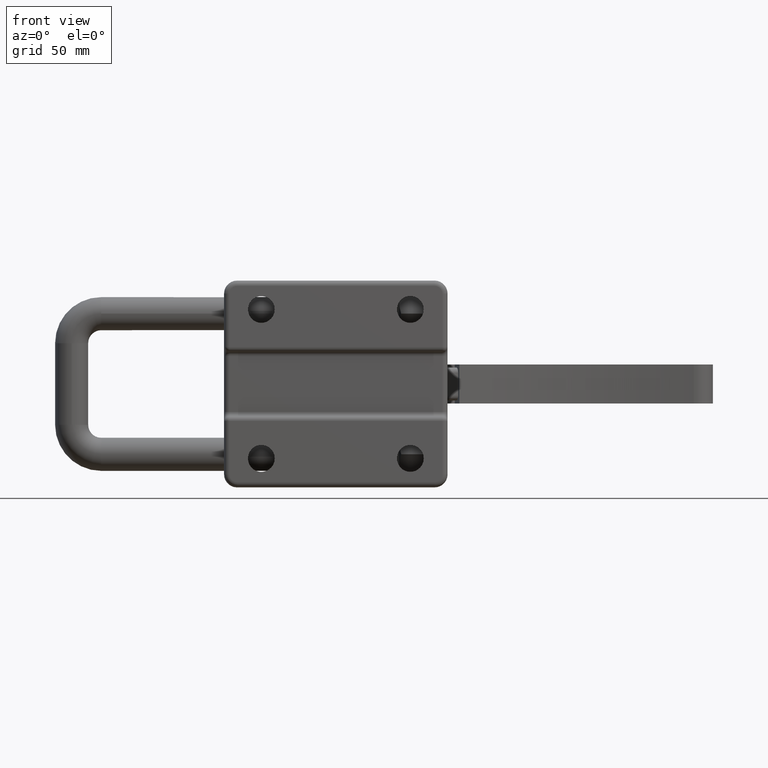
[diagram: clean part render]
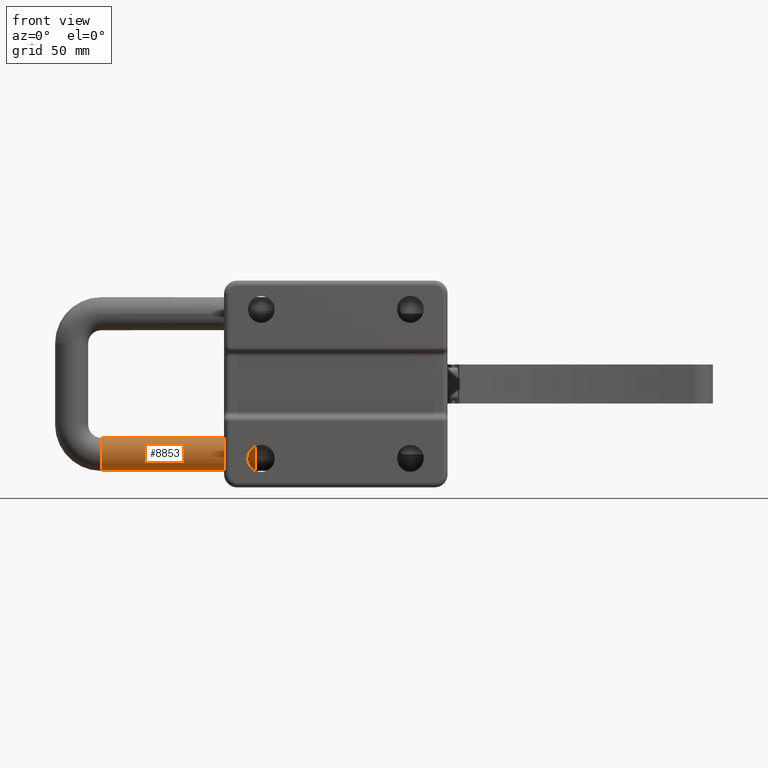
[diagram: same view with one face highlighted and labeled with its STEP entity id]
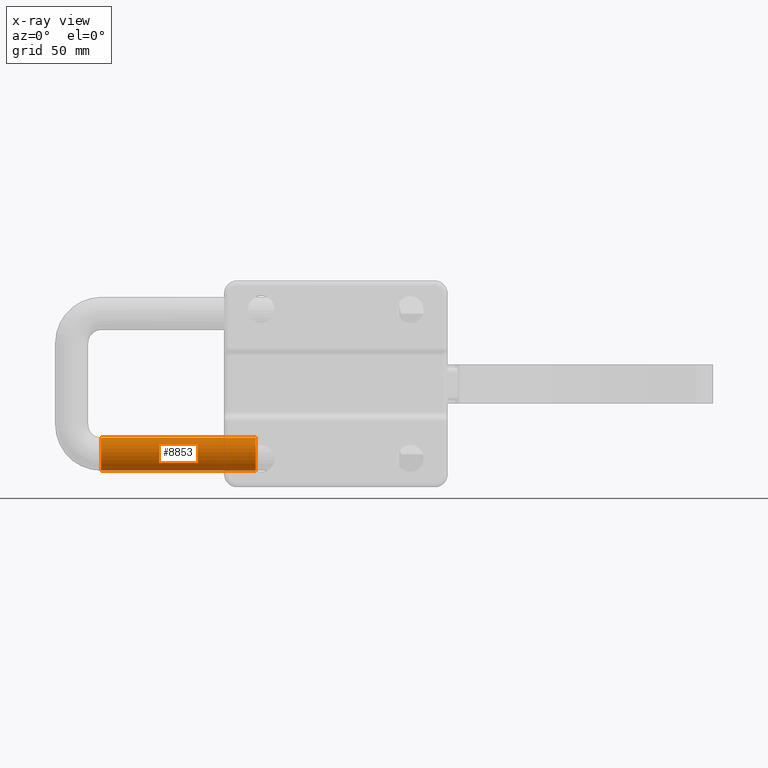
[diagram: x-ray of the same camera — body ghosted, the highlighted face saturated]
A machine part, front view. The second image highlights one B-rep face of the part: STEP entity #8853.
The next image is the same camera in x-ray: the body ghosted, the highlighted face saturated — about 0% of this face is hidden behind the body in this view.
In plain terms, the highlighted cylindrical surface (edge-blend (fillet) strip) has radius 6.35 mm, axis along (1, -0.0023, 0).
Its self-contained STEP definition (entity closure, byte-faithful):
#82 = DIRECTION ( 'NONE',  ( 0.9999974614537677800, -0.002253239006544745800, 6.827962659925420800E-016 ) ) ;
#327 = DIRECTION ( 'NONE',  ( -0.9999974614537677800, 0.002253239006544745800, -2.812591432557387700E-016 ) ) ;
#511 = AXIS2_PLACEMENT_3D ( 'NONE', #9994, #5978, #4023 ) ;
#754 = VECTOR ( 'NONE', #2638, 1000.000000000000200 ) ;
#1694 = ORIENTED_EDGE ( 'NONE', *, *, #3272, .F. ) ;
#2559 = CARTESIAN_POINT ( 'NONE',  ( -30.76788671759244000, 27.52169864269107800, -33.34999999999997300 ) ) ;
#2613 = CIRCLE ( 'NONE', #6586, 6.349999999999998800 ) ;
#2638 = DIRECTION ( 'NONE',  ( 0.9999974614537675600, -0.002253239006544745400, 4.573888958998415300E-016 ) ) ;
#2665 = EDGE_CURVE ( 'NONE', #8363, #6148, #8702, .T. ) ;
#2956 = EDGE_CURVE ( 'NONE', #8363, #11074, #2613, .T. ) ;
#3223 = CARTESIAN_POINT ( 'NONE',  ( -90.06773618180093900, 27.65531571577918200, -20.64999999999999500 ) ) ;
#3272 = EDGE_CURVE ( 'NONE', #11074, #12253, #10732, .T. ) ;
#3402 = EDGE_LOOP ( 'NONE', ( #11741, #12087, #9592, #1694 ) ) ;
#4023 = DIRECTION ( 'NONE',  ( 0.0000000000000000000, 0.0000000000000000000, 1.000000000000000000 ) ) ;
#5317 = CYLINDRICAL_SURFACE ( 'NONE', #511, 6.350000000000001400 ) ;
#5400 = VECTOR ( 'NONE', #11939, 1000.000000000000200 ) ;
#5978 = DIRECTION ( 'NONE',  ( 0.9999974614537675600, -0.002253239006544745400, 4.573888958998415300E-016 ) ) ;
#6051 = CARTESIAN_POINT ( 'NONE',  ( -30.76788671759245400, 27.52169864269107800, -26.99999999999996800 ) ) ;
#6148 = VERTEX_POINT ( 'NONE', #2559 ) ;
#6306 = CARTESIAN_POINT ( 'NONE',  ( -90.06773618180093900, 27.65531571577918200, -26.99999999999999600 ) ) ;
#6472 = CARTESIAN_POINT ( 'NONE',  ( -30.76788671759245400, 27.52169864269107800, -20.64999999999996700 ) ) ;
#6586 = AXIS2_PLACEMENT_3D ( 'NONE', #6306, #327, #7285 ) ;
#7043 = DIRECTION ( 'NONE',  ( -5.463695987328525500E-016, 0.0000000000000000000, 1.000000000000000000 ) ) ;
#7285 = DIRECTION ( 'NONE',  ( 0.002253239006545706000, 0.9999974614537675600, 0.0000000000000000000 ) ) ;
#7999 = CARTESIAN_POINT ( 'NONE',  ( -90.06773618180093900, 27.65531571577918200, -33.34999999999999400 ) ) ;
#8044 = EDGE_CURVE ( 'NONE', #12253, #6148, #11473, .T. ) ;
#8363 = VERTEX_POINT ( 'NONE', #7999 ) ;
#8613 = CARTESIAN_POINT ( 'NONE',  ( -90.06773618180093900, 27.65531571577918200, -33.34999999999999400 ) ) ;
#8617 = FACE_OUTER_BOUND ( 'NONE', #3402, .T. ) ;
#8702 = LINE ( 'NONE', #8613, #754 ) ;
#8853 = ADVANCED_FACE ( 'NONE', ( #8617 ), #5317, .T. ) ;
#9592 = ORIENTED_EDGE ( 'NONE', *, *, #8044, .F. ) ;
#9925 = CARTESIAN_POINT ( 'NONE',  ( -90.06773618180093900, 27.65531571577918200, -20.64999999999999500 ) ) ;
#9994 = CARTESIAN_POINT ( 'NONE',  ( -90.06773618180093900, 27.65531571577918200, -26.99999999999999600 ) ) ;
#10732 = LINE ( 'NONE', #9925, #5400 ) ;
#11074 = VERTEX_POINT ( 'NONE', #3223 ) ;
#11473 = CIRCLE ( 'NONE', #12735, 6.350000000000001400 ) ;
#11741 = ORIENTED_EDGE ( 'NONE', *, *, #2956, .F. ) ;
#11939 = DIRECTION ( 'NONE',  ( 0.9999974614537675600, -0.002253239006544745400, 4.573888958998415300E-016 ) ) ;
#12087 = ORIENTED_EDGE ( 'NONE', *, *, #2665, .T. ) ;
#12253 = VERTEX_POINT ( 'NONE', #6472 ) ;
#12735 = AXIS2_PLACEMENT_3D ( 'NONE', #6051, #82, #7043 ) ;